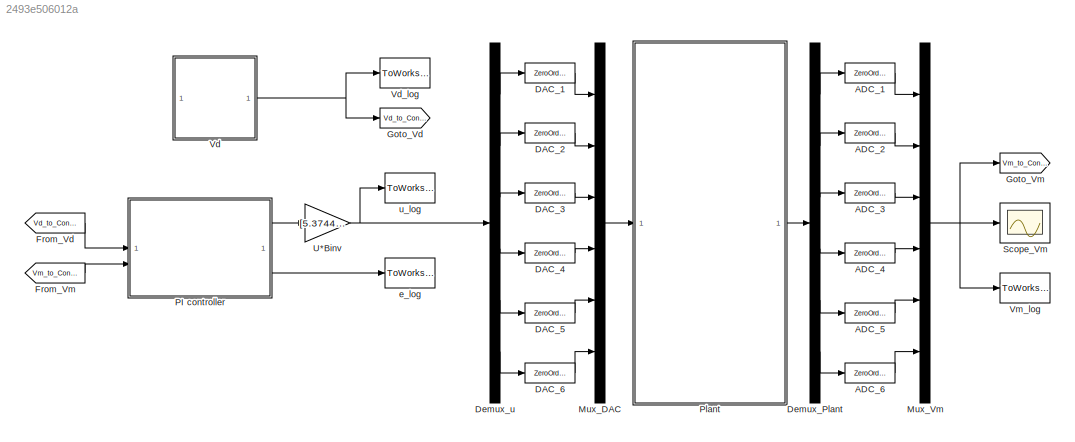
MODEL slx_2493e506012a
KIND model
CONFIG AbsTol = auto
CONFIG EnableMultiTasking = off
CONFIG FixedStep = 1e-05
CONFIG MaxStep = 1e-06
CONFIG MinStep = auto
CONFIG RelTol = 1e-3
CONFIG SampleTimeConstraint = Unconstrained
CONFIG SolverName = ode5
CONFIG StartTime = 0.0
CONFIG StopTime = 0.1
BLOCK [ZeroOrderHold] ADC_1
  SampleTime = 1e-05
BLOCK [ZeroOrderHold] ADC_2
  SampleTime = 1e-05
BLOCK [ZeroOrderHold] ADC_3
  SampleTime = 1e-05
BLOCK [ZeroOrderHold] ADC_4
  SampleTime = 1e-05
BLOCK [ZeroOrderHold] ADC_5
  SampleTime = 1e-05
BLOCK [ZeroOrderHold] ADC_6
  SampleTime = 1e-05
BLOCK [ZeroOrderHold] DAC_1
  SampleTime = 1e-05
BLOCK [ZeroOrderHold] DAC_2
  SampleTime = 1e-05
BLOCK [ZeroOrderHold] DAC_3
  SampleTime = 1e-05
BLOCK [ZeroOrderHold] DAC_4
  SampleTime = 1e-05
BLOCK [ZeroOrderHold] DAC_5
  SampleTime = 1e-05
BLOCK [ZeroOrderHold] DAC_6
  SampleTime = 1e-05
BLOCK [Demux] Demux_Plant
  Outputs = 6
BLOCK [Demux] Demux_u
  Outputs = 6
BLOCK [From] From_Vd
  GotoTag = Vd_to_Controller
BLOCK [From] From_Vm
  GotoTag = Vm_to_Controller
BLOCK [Goto] Goto_Vd
  GotoTag = Vd_to_Controller
BLOCK [Goto] Goto_Vm
  GotoTag = Vm_to_Controller
BLOCK [Mux] Mux_DAC
  DisplayOption = bar
  Inputs = 6
BLOCK [Mux] Mux_Vm
  DisplayOption = bar
  Inputs = 6
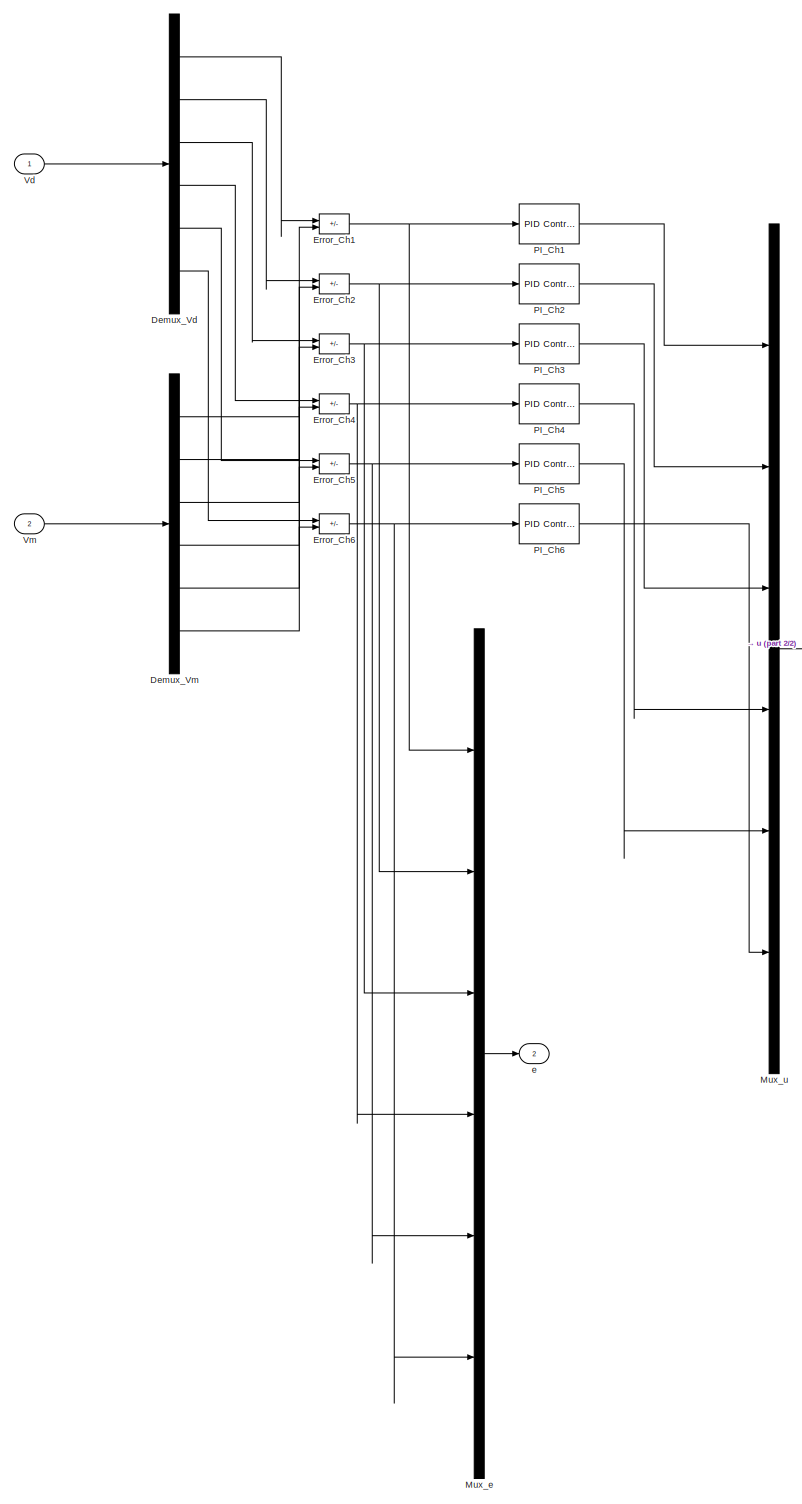
[diagram: PI controller - part 1/2, most of the canvas]
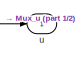
[diagram: PI controller - part 2/2, middle right region]
BLOCK [SubSystem] PI controller
BLOCK [Demux] PI controller/Demux_Vd
  Outputs = 6
BLOCK [Demux] PI controller/Demux_Vm
  Outputs = 6
BLOCK [Sum] PI controller/Error_Ch1
  IconShape = rectangular
  Inputs = +-
BLOCK [Sum] PI controller/Error_Ch2
  IconShape = rectangular
  Inputs = +-
BLOCK [Sum] PI controller/Error_Ch3
  IconShape = rectangular
  Inputs = +-
BLOCK [Sum] PI controller/Error_Ch4
  IconShape = rectangular
  Inputs = +-
BLOCK [Sum] PI controller/Error_Ch5
  IconShape = rectangular
  Inputs = +-
BLOCK [Sum] PI controller/Error_Ch6
  IconShape = rectangular
  Inputs = +-
BLOCK [Mux] PI controller/Mux_e
  DisplayOption = bar
  Inputs = 6
BLOCK [Mux] PI controller/Mux_u
  DisplayOption = bar
  Inputs = 6
BLOCK [Reference] PI controller/PI_Ch1  REF=slpidlib/PID Controller
  LibrarySourceBlock = simulink/Discrete/Discrete PID Controller
  SourceBlock = slpidlib/PID Controller
  SourceType = PID 1dof
BLOCK [Reference] PI controller/PI_Ch2  REF=slpidlib/PID Controller
  LibrarySourceBlock = simulink/Discrete/Discrete PID Controller
  SourceBlock = slpidlib/PID Controller
  SourceType = PID 1dof
BLOCK [Reference] PI controller/PI_Ch3  REF=slpidlib/PID Controller
  LibrarySourceBlock = simulink/Discrete/Discrete PID Controller
  SourceBlock = slpidlib/PID Controller
  SourceType = PID 1dof
BLOCK [Reference] PI controller/PI_Ch4  REF=slpidlib/PID Controller
  LibrarySourceBlock = simulink/Discrete/Discrete PID Controller
  SourceBlock = slpidlib/PID Controller
  SourceType = PID 1dof
BLOCK [Reference] PI controller/PI_Ch5  REF=slpidlib/PID Controller
  LibrarySourceBlock = simulink/Discrete/Discrete PID Controller
  SourceBlock = slpidlib/PID Controller
  SourceType = PID 1dof
BLOCK [Reference] PI controller/PI_Ch6  REF=slpidlib/PID Controller
  LibrarySourceBlock = simulink/Discrete/Discrete PID Controller
  SourceBlock = slpidlib/PID Controller
  SourceType = PID 1dof
BLOCK [Inport] PI controller/Vd
BLOCK [Inport] PI controller/Vm
  Port = 2
BLOCK [Outport] PI controller/e
  Port = 2
BLOCK [Outport] PI controller/u
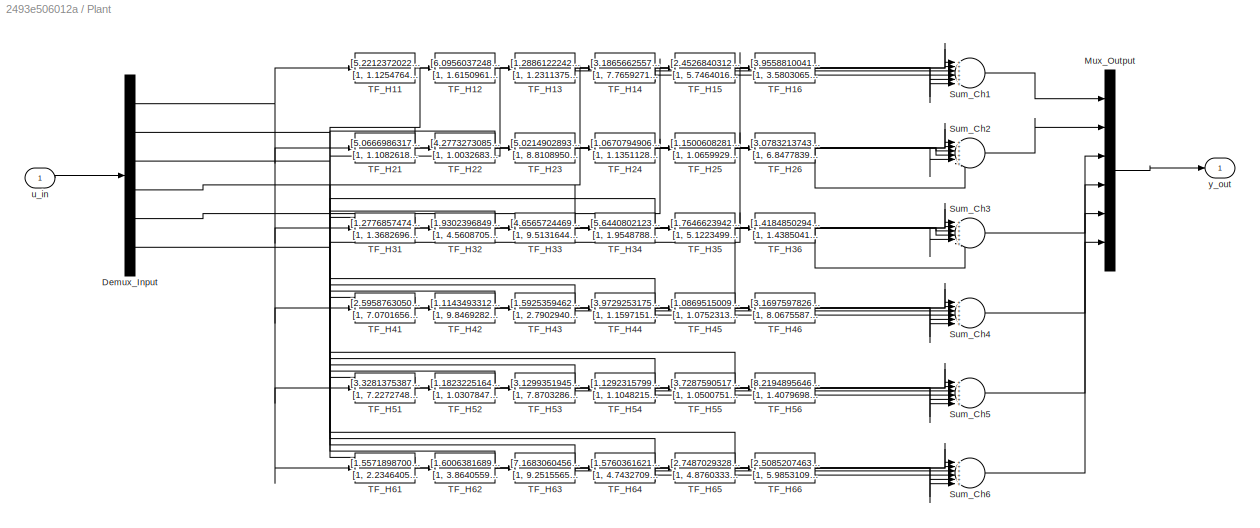
BLOCK [SubSystem] Plant
BLOCK [Demux] Plant/Demux_Input
  Outputs = 6
BLOCK [Mux] Plant/Mux_Output
  DisplayOption = bar
  Inputs = 6
BLOCK [Sum] Plant/Sum_Ch1
  Inputs = ++++++
BLOCK [Sum] Plant/Sum_Ch2
  Inputs = ++++++
BLOCK [Sum] Plant/Sum_Ch3
  Inputs = ++++++
BLOCK [Sum] Plant/Sum_Ch4
  Inputs = ++++++
BLOCK [Sum] Plant/Sum_Ch5
  Inputs = ++++++
BLOCK [Sum] Plant/Sum_Ch6
  Inputs = ++++++
BLOCK [TransferFcn] Plant/TF_H11
  Denominator = [1, 1.125476429798e+04, 2.207970207484e+07]
  Numerator = [5.221237202258e+06]
BLOCK [TransferFcn] Plant/TF_H12
  Denominator = [1, 1.615096196557e+03, 9.571173160946e+06]
  Numerator = [6.095603724823e+04]
BLOCK [TransferFcn] Plant/TF_H13
  Denominator = [1, 1.231137597589e+04, 3.947206038787e+07]
  Numerator = [1.288612224236e+06]
BLOCK [TransferFcn] Plant/TF_H14
  Denominator = [1, 7.765927137710e+03, 9.263818981101e+06]
  Numerator = [3.186566255776e+05]
BLOCK [TransferFcn] Plant/TF_H15
  Denominator = [1, 5.746401647961e+03, 5.999997285542e+06]
  Numerator = [2.452684031253e+05]
BLOCK [TransferFcn] Plant/TF_H16
  Denominator = [1, 3.580306515557e+03, 1.155083131186e+07]
  Numerator = [3.955881004140e+05]
BLOCK [TransferFcn] Plant/TF_H21
  Denominator = [1, 1.108261849372e+03, 1.373615752245e+07]
  Numerator = [5.066698631790e+04]
BLOCK [TransferFcn] Plant/TF_H22
  Denominator = [1, 1.003268373777e+04, 1.517256424974e+07]
  Numerator = [4.277327308593e+06]
BLOCK [TransferFcn] Plant/TF_H23
  Denominator = [1, 8.810895080316e+03, 1.176013147465e+07]
  Numerator = [5.021490289304e+05]
BLOCK [TransferFcn] Plant/TF_H24
  Denominator = [1, 1.135112820448e+04, 1.579872906385e+07]
  Numerator = [1.067079490600e+06]
BLOCK [TransferFcn] Plant/TF_H25
  Denominator = [1, 1.065992916636e+04, 1.476096604860e+07]
  Numerator = [1.150060828107e+06]
BLOCK [TransferFcn] Plant/TF_H26
  Denominator = [1, 6.847783968129e+03, 8.350689199857e+06]
  Numerator = [3.078321374306e+05]
BLOCK [TransferFcn] Plant/TF_H31
  Denominator = [1, 1.368269686933e+04, 3.407241686199e+07]
  Numerator = [1.277685747428e+06]
BLOCK [TransferFcn] Plant/TF_H32
  Denominator = [1, 4.560870597302e+03, 5.880205842512e+06]
  Numerator = [1.930239684968e+05]
BLOCK [TransferFcn] Plant/TF_H33
  Denominator = [1, 9.513164457161e+03, 2.210308479198e+07]
  Numerator = [4.656572446985e+06]
BLOCK [TransferFcn] Plant/TF_H34
  Denominator = [1, 1.954878812118e+03, 9.380728837338e+06]
  Numerator = [5.644080212304e+04]
BLOCK [TransferFcn] Plant/TF_H35
  Denominator = [1, 5.122349981324e+03, 6.659709663387e+06]
  Numerator = [1.764662394212e+05]
BLOCK [TransferFcn] Plant/TF_H36
  Denominator = [1, 1.438504147902e+03, 4.166335044060e+06]
  Numerator = [1.418485029440e+05]
BLOCK [TransferFcn] Plant/TF_H41
  Denominator = [1, 7.070165651413e+03, 1.060240979066e+07]
  Numerator = [2.595876305066e+05]
BLOCK [TransferFcn] Plant/TF_H42
  Denominator = [1, 9.846928206402e+03, 1.433078717084e+07]
  Numerator = [1.114349331223e+06]
BLOCK [TransferFcn] Plant/TF_H43
  Denominator = [1, 2.790294019501e+03, 2.871898227443e+07]
  Numerator = [1.592535946272e+05]
BLOCK [TransferFcn] Plant/TF_H44
  Denominator = [1, 1.159715140811e+04, 1.682154085249e+07]
  Numerator = [3.972925317547e+06]
BLOCK [TransferFcn] Plant/TF_H45
  Denominator = [1, 1.075231371220e+04, 1.409904497821e+07]
  Numerator = [1.086951500933e+06]
BLOCK [TransferFcn] Plant/TF_H46
  Denominator = [1, 8.067558736035e+03, 1.315975400997e+07]
  Numerator = [3.169759782656e+05]
BLOCK [TransferFcn] Plant/TF_H51
  Denominator = [1, 7.227274813518e+03, 8.052571157216e+06]
  Numerator = [3.328137538766e+05]
BLOCK [TransferFcn] Plant/TF_H52
  Denominator = [1, 1.030784744910e+04, 1.554206521303e+07]
  Numerator = [1.182322516481e+06]
BLOCK [TransferFcn] Plant/TF_H53
  Denominator = [1, 7.870328655037e+03, 1.337774667821e+07]
  Numerator = [3.129935194599e+05]
BLOCK [TransferFcn] Plant/TF_H54
  Denominator = [1, 1.104821595243e+04, 1.568676428581e+07]
  Numerator = [1.129231579925e+06]
BLOCK [TransferFcn] Plant/TF_H55
  Denominator = [1, 1.050075182774e+04, 1.449217376803e+07]
  Numerator = [3.728759051745e+06]
BLOCK [TransferFcn] Plant/TF_H56
  Denominator = [1, 1.407969854523e+03, 1.853348985437e+07]
  Numerator = [8.219489564647e+04]
BLOCK [TransferFcn] Plant/TF_H61
  Denominator = [1, 2.234640585923e+04, 6.373749577675e+07]
  Numerator = [1.557189870041e+06]
BLOCK [TransferFcn] Plant/TF_H62
  Denominator = [1, 3.864055922471e+03, 4.849839120469e+06]
  Numerator = [1.600638168987e+05]
BLOCK [TransferFcn] Plant/TF_H63
  Denominator = [1, 9.251556589809e+03, 2.787193801633e+07]
  Numerator = [7.168306045699e+05]
BLOCK [TransferFcn] Plant/TF_H64
  Denominator = [1, 4.743270970318e+03, 6.428360363602e+06]
  Numerator = [1.576036162155e+05]
BLOCK [TransferFcn] Plant/TF_H65
  Denominator = [1, 4.876033357949e+02, 9.309786245813e+06]
  Numerator = [2.748702932822e+04]
BLOCK [TransferFcn] Plant/TF_H66
  Denominator = [1, 5.985310903650e+03, 1.360142788272e+07]
  Numerator = [2.508520746356e+06]
BLOCK [Inport] Plant/u_in
BLOCK [Outport] Plant/y_out
BLOCK [Scope] Scope_Vm
  ActiveDisplayYMaximum = 1.8168463821220382
  ActiveDisplayYMinimum = -1.8288214087376138
  Floating = off
  GraphicalSettings = {"AxesScalingProperties":{"AlignXAxis":"Center","AlignYAxis":"Center","AutoScaleXAxisLimits":false,"AxesScaling":"Manual","AxesScalingNumUpdates":10,"ExpandOnly":true,"ScaleAxesLimitsAtStop":false,"XAxisDataRange":100,"YAxisDataRange":80},"DisplayProperties":{"ColorOrder":["auto","auto","auto","auto","auto","auto","auto","auto","auto","auto","auto","auto","auto","auto","auto","auto","auto","auto",...<+2545ch>
  MultipleDisplayCache = [{"MaxYLimMag":1.3267419107347882,"MaxYLimReal":1.8168463821220382,"MinYLimMag":0,"MinYLimReal":-1.8288214087376138,"PlotAsMagnitudePhase":false,"ShowGrid":true,"ShowLegend":false,"Title":"%<SignalLabel>","YLabel":""}]
  NumInputPorts = 1
  ScopeFrameLocation = window
  WasSavedAsWebScope = on
  WindowPosition = [0.000000,36.000000,1920.000000,1009.000000,]
BLOCK [Gain] U*Binv
  Gain = [5.3744 1.7969 1.7574 2.2456 2.2738 2.0311;1.5722 5.8626 2.1621 3.1898 3.2303 2.3567;1.7622 2.0686 5.9804 1.8643 2.1053 2.1404;1.9445 3.4221 1.8713 6.8989 3.6309 2.3796;2.0590 3.2035 2.0193 3.4407 6.4464 2.0016;1.5291 2.0809 1.7335 2.0993 1.7587 6.7569]
  Multiplication = Matrix(K*u)
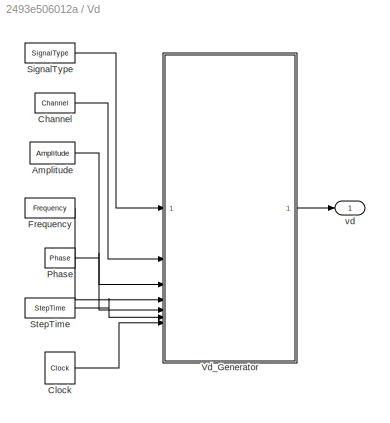
BLOCK [SubSystem] Vd
BLOCK [Constant] Vd/Amplitude
  Value = Amplitude
BLOCK [Constant] Vd/Channel
  Value = Channel
BLOCK [Clock] Vd/Clock
  DisplayTime = on
BLOCK [Constant] Vd/Frequency
  Value = Frequency
BLOCK [Constant] Vd/Phase
  Value = Phase
BLOCK [Constant] Vd/SignalType
  Value = SignalType
BLOCK [Constant] Vd/StepTime
  Value = StepTime
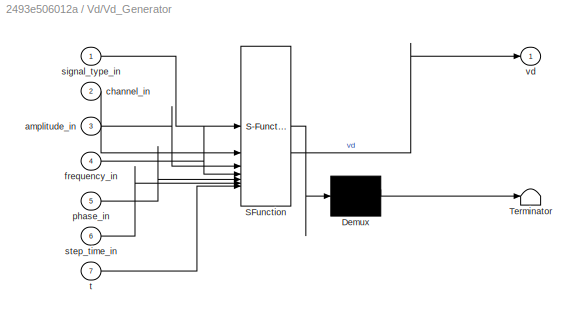
BLOCK [SubSystem] Vd/Vd_Generator
  ErrorFcn = Stateflow.Translate.translate
  PermitHierarchicalResolution = ExplicitOnly
  SFBlockType = MATLAB Function
  TreatAsAtomicUnit = on
BLOCK [Demux] Vd/Vd_Generator/ Demux 
  Outputs = 1
BLOCK [S-Function] Vd/Vd_Generator/ SFunction 
  EnableBusSupport = off
  FunctionName = sf_sfun
  PortCounts = [7 2]
  SFcnIsStateOwnerBlock = off
  SFunctionDeploymentMode = off
  Tag = Stateflow S-Function 2
BLOCK [Terminator] Vd/Vd_Generator/ Terminator 
BLOCK [Inport] Vd/Vd_Generator/amplitude_in
  Port = 3
BLOCK [Inport] Vd/Vd_Generator/channel_in
  Port = 2
BLOCK [Inport] Vd/Vd_Generator/frequency_in
  Port = 4
BLOCK [Inport] Vd/Vd_Generator/phase_in
  Port = 5
BLOCK [Inport] Vd/Vd_Generator/signal_type_in
BLOCK [Inport] Vd/Vd_Generator/step_time_in
  Port = 6
BLOCK [Inport] Vd/Vd_Generator/t
  Port = 7
BLOCK [Outport] Vd/Vd_Generator/vd
BLOCK [Outport] Vd/vd
BLOCK [ToWorkspace] Vd_log
  MaxDataPoints = inf
  SampleTime = -1
  Save2DSignal = 2-D array (concatenate along first dimension)
  VariableName = Vd
BLOCK [ToWorkspace] Vm_log
  MaxDataPoints = inf
  SampleTime = -1
  Save2DSignal = 2-D array (concatenate along first dimension)
  VariableName = Vm
BLOCK [ToWorkspace] e_log
  MaxDataPoints = inf
  SampleTime = -1
  Save2DSignal = 2-D array (concatenate along first dimension)
  VariableName = e
BLOCK [ToWorkspace] u_log
  MaxDataPoints = inf
  SampleTime = -1
  Save2DSignal = 2-D array (concatenate along first dimension)
  VariableName = u
LINE ADC_1:1 -> Mux_Vm:1
LINE ADC_2:1 -> Mux_Vm:2
LINE ADC_3:1 -> Mux_Vm:3
LINE ADC_4:1 -> Mux_Vm:4
LINE ADC_5:1 -> Mux_Vm:5
LINE ADC_6:1 -> Mux_Vm:6
LINE DAC_1:1 -> Mux_DAC:1
LINE DAC_2:1 -> Mux_DAC:2
LINE DAC_3:1 -> Mux_DAC:3
LINE DAC_4:1 -> Mux_DAC:4
LINE DAC_5:1 -> Mux_DAC:5
LINE DAC_6:1 -> Mux_DAC:6
LINE Demux_Plant:1 -> ADC_1:1
LINE Demux_Plant:2 -> ADC_2:1
LINE Demux_Plant:3 -> ADC_3:1
LINE Demux_Plant:4 -> ADC_4:1
LINE Demux_Plant:5 -> ADC_5:1
LINE Demux_Plant:6 -> ADC_6:1
LINE Demux_u:1 -> DAC_1:1
LINE Demux_u:2 -> DAC_2:1
LINE Demux_u:3 -> DAC_3:1
LINE Demux_u:4 -> DAC_4:1
LINE Demux_u:5 -> DAC_5:1
LINE Demux_u:6 -> DAC_6:1
LINE From_Vd:1 -> PI controller:1
LINE From_Vm:1 -> PI controller:2
LINE Mux_DAC:1 -> Plant:1
NET Mux_Vm:1 -> Goto_Vm:1, Scope_Vm:1, Vm_log:1
LINE PI controller/Demux_Vd:1 -> PI controller/Error_Ch1:1
LINE PI controller/Demux_Vd:2 -> PI controller/Error_Ch2:1
LINE PI controller/Demux_Vd:3 -> PI controller/Error_Ch3:1
LINE PI controller/Demux_Vd:4 -> PI controller/Error_Ch4:1
LINE PI controller/Demux_Vd:5 -> PI controller/Error_Ch5:1
LINE PI controller/Demux_Vd:6 -> PI controller/Error_Ch6:1
LINE PI controller/Demux_Vm:1 -> PI controller/Error_Ch1:2
LINE PI controller/Demux_Vm:2 -> PI controller/Error_Ch2:2
LINE PI controller/Demux_Vm:3 -> PI controller/Error_Ch3:2
LINE PI controller/Demux_Vm:4 -> PI controller/Error_Ch4:2
LINE PI controller/Demux_Vm:5 -> PI controller/Error_Ch5:2
LINE PI controller/Demux_Vm:6 -> PI controller/Error_Ch6:2
NET PI controller/Error_Ch1:1 -> PI controller/Mux_e:1, PI controller/PI_Ch1:1
NET PI controller/Error_Ch2:1 -> PI controller/Mux_e:2, PI controller/PI_Ch2:1
NET PI controller/Error_Ch3:1 -> PI controller/Mux_e:3, PI controller/PI_Ch3:1
NET PI controller/Error_Ch4:1 -> PI controller/Mux_e:4, PI controller/PI_Ch4:1
NET PI controller/Error_Ch5:1 -> PI controller/Mux_e:5, PI controller/PI_Ch5:1
NET PI controller/Error_Ch6:1 -> PI controller/Mux_e:6, PI controller/PI_Ch6:1
LINE PI controller/Mux_e:1 -> PI controller/e:1
LINE PI controller/Mux_u:1 -> PI controller/u:1
LINE PI controller/PI_Ch1:1 -> PI controller/Mux_u:1
LINE PI controller/PI_Ch2:1 -> PI controller/Mux_u:2
LINE PI controller/PI_Ch3:1 -> PI controller/Mux_u:3
LINE PI controller/PI_Ch4:1 -> PI controller/Mux_u:4
LINE PI controller/PI_Ch5:1 -> PI controller/Mux_u:5
LINE PI controller/PI_Ch6:1 -> PI controller/Mux_u:6
LINE PI controller/Vd:1 -> PI controller/Demux_Vd:1
LINE PI controller/Vm:1 -> PI controller/Demux_Vm:1
LINE PI controller:1 -> U*Binv:1
LINE PI controller:2 -> e_log:1
NET Plant/Demux_Input:1 -> Plant/TF_H11:1, Plant/TF_H21:1, Plant/TF_H31:1, Plant/TF_H41:1, Plant/TF_H51:1, Plant/TF_H61:1
NET Plant/Demux_Input:2 -> Plant/TF_H12:1, Plant/TF_H22:1, Plant/TF_H32:1, Plant/TF_H42:1, Plant/TF_H52:1, Plant/TF_H62:1
NET Plant/Demux_Input:3 -> Plant/TF_H13:1, Plant/TF_H23:1, Plant/TF_H33:1, Plant/TF_H43:1, Plant/TF_H53:1, Plant/TF_H63:1
NET Plant/Demux_Input:4 -> Plant/TF_H14:1, Plant/TF_H24:1, Plant/TF_H34:1, Plant/TF_H44:1, Plant/TF_H54:1, Plant/TF_H64:1
NET Plant/Demux_Input:5 -> Plant/TF_H15:1, Plant/TF_H25:1, Plant/TF_H35:1, Plant/TF_H45:1, Plant/TF_H55:1, Plant/TF_H65:1
NET Plant/Demux_Input:6 -> Plant/TF_H16:1, Plant/TF_H26:1, Plant/TF_H36:1, Plant/TF_H46:1, Plant/TF_H56:1, Plant/TF_H66:1
LINE Plant/Mux_Output:1 -> Plant/y_out:1
LINE Plant/Sum_Ch1:1 -> Plant/Mux_Output:1
LINE Plant/Sum_Ch2:1 -> Plant/Mux_Output:2
LINE Plant/Sum_Ch3:1 -> Plant/Mux_Output:3
LINE Plant/Sum_Ch4:1 -> Plant/Mux_Output:4
LINE Plant/Sum_Ch5:1 -> Plant/Mux_Output:5
LINE Plant/Sum_Ch6:1 -> Plant/Mux_Output:6
LINE Plant/TF_H11:1 -> Plant/Sum_Ch1:1
LINE Plant/TF_H12:1 -> Plant/Sum_Ch1:2
LINE Plant/TF_H13:1 -> Plant/Sum_Ch1:3
LINE Plant/TF_H14:1 -> Plant/Sum_Ch1:4
LINE Plant/TF_H15:1 -> Plant/Sum_Ch1:5
LINE Plant/TF_H16:1 -> Plant/Sum_Ch1:6
LINE Plant/TF_H21:1 -> Plant/Sum_Ch2:1
LINE Plant/TF_H22:1 -> Plant/Sum_Ch2:2
LINE Plant/TF_H23:1 -> Plant/Sum_Ch2:3
LINE Plant/TF_H24:1 -> Plant/Sum_Ch2:4
LINE Plant/TF_H25:1 -> Plant/Sum_Ch2:5
LINE Plant/TF_H26:1 -> Plant/Sum_Ch2:6
LINE Plant/TF_H31:1 -> Plant/Sum_Ch3:1
LINE Plant/TF_H32:1 -> Plant/Sum_Ch3:2
LINE Plant/TF_H33:1 -> Plant/Sum_Ch3:3
LINE Plant/TF_H34:1 -> Plant/Sum_Ch3:4
LINE Plant/TF_H35:1 -> Plant/Sum_Ch3:5
LINE Plant/TF_H36:1 -> Plant/Sum_Ch3:6
LINE Plant/TF_H41:1 -> Plant/Sum_Ch4:1
LINE Plant/TF_H42:1 -> Plant/Sum_Ch4:2
LINE Plant/TF_H43:1 -> Plant/Sum_Ch4:3
LINE Plant/TF_H44:1 -> Plant/Sum_Ch4:4
LINE Plant/TF_H45:1 -> Plant/Sum_Ch4:5
LINE Plant/TF_H46:1 -> Plant/Sum_Ch4:6
LINE Plant/TF_H51:1 -> Plant/Sum_Ch5:1
LINE Plant/TF_H52:1 -> Plant/Sum_Ch5:2
LINE Plant/TF_H53:1 -> Plant/Sum_Ch5:3
LINE Plant/TF_H54:1 -> Plant/Sum_Ch5:4
LINE Plant/TF_H55:1 -> Plant/Sum_Ch5:5
LINE Plant/TF_H56:1 -> Plant/Sum_Ch5:6
LINE Plant/TF_H61:1 -> Plant/Sum_Ch6:1
LINE Plant/TF_H62:1 -> Plant/Sum_Ch6:2
LINE Plant/TF_H63:1 -> Plant/Sum_Ch6:3
LINE Plant/TF_H64:1 -> Plant/Sum_Ch6:4
LINE Plant/TF_H65:1 -> Plant/Sum_Ch6:5
LINE Plant/TF_H66:1 -> Plant/Sum_Ch6:6
LINE Plant/u_in:1 -> Plant/Demux_Input:1
LINE Plant:1 -> Demux_Plant:1
NET U*Binv:1 -> Demux_u:1, u_log:1
LINE Vd/Amplitude:1 -> Vd/Vd_Generator:3
LINE Vd/Channel:1 -> Vd/Vd_Generator:2
LINE Vd/Clock:1 -> Vd/Vd_Generator:7
LINE Vd/Frequency:1 -> Vd/Vd_Generator:4
LINE Vd/Phase:1 -> Vd/Vd_Generator:5
LINE Vd/SignalType:1 -> Vd/Vd_Generator:1
LINE Vd/StepTime:1 -> Vd/Vd_Generator:6
LINE Vd/Vd_Generator:1 -> Vd/vd:1
NET Vd:1 -> Goto_Vd:1, Vd_log:1
note: NET lines group one-source signal fan-out (src -> all destinations, sorted); 1:1 wires keep LINE
CHART Vd/Vd_Generator states=1 transitions=1
  STATE_LABEL 'eML_blk_kernel()'
  STATE_LABEL 'SCRIPT:\nfunction vd = fcn(signal_type_in, channel_in, amplitude_in, frequency_in, phase_in, step_time_in, t)\n    \n    vd = zeros(6, 1);\n\n    channel = round(channel_in);\n    if channel < 1 || channel > 6\n        channel = 1;\n    end\n\n    if signal_type_in == 1\n        % Sine Wave\n        vd(channel) = amplitude_in * sin(2*pi*frequency_in*t + 180 * phase_in /  pi);\n    else\n        if t >= step_tim...<+111ch>'
CHART  states=0 transitions=0
